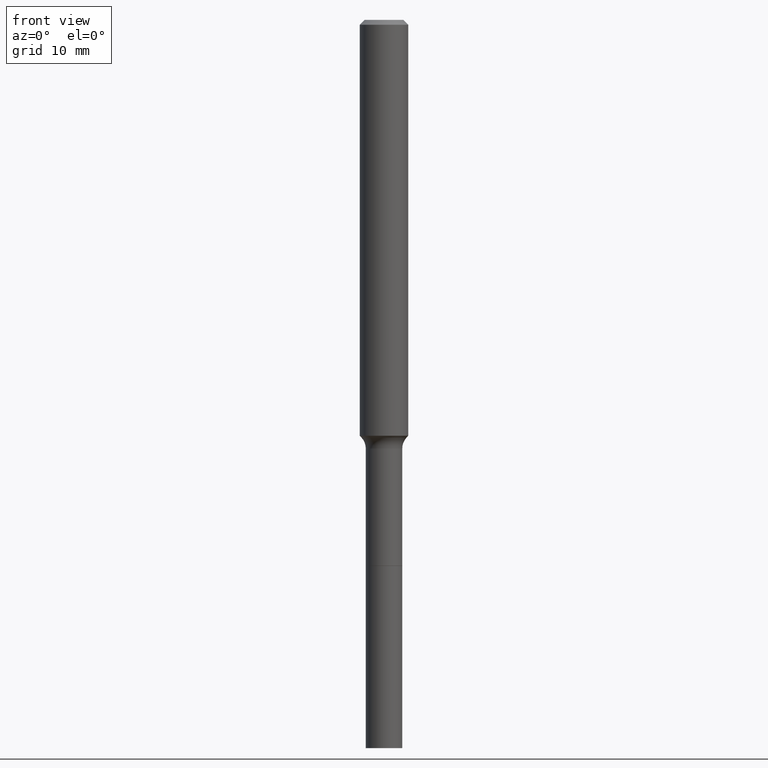
[diagram: clean part render]
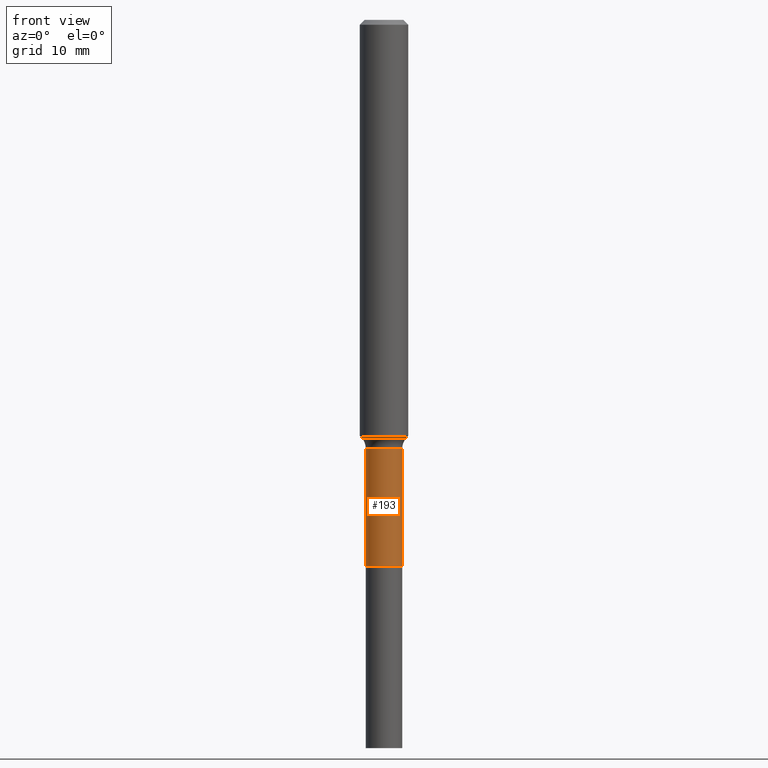
[diagram: same view with one face highlighted and labeled with its STEP entity id]
A machine part, front view. The second image highlights one B-rep face of the part: STEP entity #193.
In plain terms, the highlighted cylindrical surface (edge-blend (fillet) strip) has radius 2.2504 mm, axis along (-0, 0, 1).
Its self-contained STEP definition (entity closure, byte-faithful):
#4 = CARTESIAN_POINT ( 'NONE',  ( 5.101981570344049922E-29, -7.284277517228453725E-15, -2.086299999999999599 ) ) ;
#13 = FACE_OUTER_BOUND ( 'NONE', #422, .T. ) ;
#17 = CARTESIAN_POINT ( 'NONE',  ( -0.08859999999999995657, 6.295408638834484561E-16, -4.358176489965844866E-30 ) ) ;
#19 = ORIENTED_EDGE ( 'NONE', *, *, #333, .F. ) ;
#60 = DIRECTION ( 'NONE',  ( -2.445468806185136597E-29, 3.491481338843145583E-15, 1.000000000000000000 ) ) ;
#78 = CARTESIAN_POINT ( 'NONE',  ( 0.08859999999999995657, -6.186904932430029529E-16, 4.320292623355197364E-30 ) ) ;
#93 = EDGE_CURVE ( 'NONE', #444, #102, #455, .T. ) ;
#102 = VERTEX_POINT ( 'NONE', #369 ) ;
#105 = VERTEX_POINT ( 'NONE', #136 ) ;
#106 = DIRECTION ( 'NONE',  ( 1.000000000000000000, -6.982962677686266711E-15, 4.876176775795936353E-29 ) ) ;
#112 = CIRCLE ( 'NONE', #277, 0.08859999999999992881 ) ;
#120 = CARTESIAN_POINT ( 'NONE',  ( -0.08859999999999999820, -7.650681705250012498E-15, -2.656800000000000050 ) ) ;
#134 = DIRECTION ( 'NONE',  ( 1.000000000000000000, -6.982962677686269077E-15, 0.000000000000000000 ) ) ;
#136 = CARTESIAN_POINT ( 'NONE',  ( -0.08859999999999992881, -7.650681705250012498E-15, -2.086299999999999599 ) ) ;
#163 = LINE ( 'NONE', #78, #186 ) ;
#176 = CYLINDRICAL_SURFACE ( 'NONE', #362, 0.08859999999999995657 ) ;
#186 = VECTOR ( 'NONE', #238, 39.37007874015748143 ) ;
#188 = VERTEX_POINT ( 'NONE', #331 ) ;
#193 = ADVANCED_FACE ( 'NONE', ( #13 ), #176, .T. ) ;
#202 = VECTOR ( 'NONE', #463, 39.37007874015748143 ) ;
#208 = CARTESIAN_POINT ( 'NONE',  ( 6.497121524272670718E-29, -9.276167621038468972E-15, -2.656800000000000050 ) ) ;
#238 = DIRECTION ( 'NONE',  ( -2.445468806185136877E-29, 3.491481338843145188E-15, 1.000000000000000000 ) ) ;
#275 = DIRECTION ( 'NONE',  ( -2.445468806185136597E-29, 3.491481338843145583E-15, 1.000000000000000000 ) ) ;
#277 = AXIS2_PLACEMENT_3D ( 'NONE', #4, #275, #310 ) ;
#304 = LINE ( 'NONE', #17, #202 ) ;
#310 = DIRECTION ( 'NONE',  ( 1.000000000000000000, -6.982962677686263555E-15, 0.000000000000000000 ) ) ;
#331 = CARTESIAN_POINT ( 'NONE',  ( 0.08859999999999992881, -7.902968010471456678E-15, -2.086299999999999599 ) ) ;
#332 = CARTESIAN_POINT ( 'NONE',  ( 0.000000000000000000, 0.000000000000000000, 0.000000000000000000 ) ) ;
#333 = EDGE_CURVE ( 'NONE', #444, #105, #304, .T. ) ;
#355 = ORIENTED_EDGE ( 'NONE', *, *, #502, .T. ) ;
#362 = AXIS2_PLACEMENT_3D ( 'NONE', #332, #60, #106 ) ;
#369 = CARTESIAN_POINT ( 'NONE',  ( 0.08859999999999999820, -9.894858114281471925E-15, -2.656800000000000050 ) ) ;
#378 = EDGE_CURVE ( 'NONE', #105, #188, #112, .T. ) ;
#383 = ORIENTED_EDGE ( 'NONE', *, *, #93, .T. ) ;
#393 = AXIS2_PLACEMENT_3D ( 'NONE', #208, #414, #134 ) ;
#414 = DIRECTION ( 'NONE',  ( -2.445468806185136597E-29, 3.491481338843145583E-15, 1.000000000000000000 ) ) ;
#422 = EDGE_LOOP ( 'NONE', ( #19, #383, #355, #430 ) ) ;
#430 = ORIENTED_EDGE ( 'NONE', *, *, #378, .F. ) ;
#444 = VERTEX_POINT ( 'NONE', #120 ) ;
#455 = CIRCLE ( 'NONE', #393, 0.08859999999999999820 ) ;
#463 = DIRECTION ( 'NONE',  ( -2.445468806185136877E-29, 3.491481338843145188E-15, 1.000000000000000000 ) ) ;
#502 = EDGE_CURVE ( 'NONE', #102, #188, #163, .T. ) ;